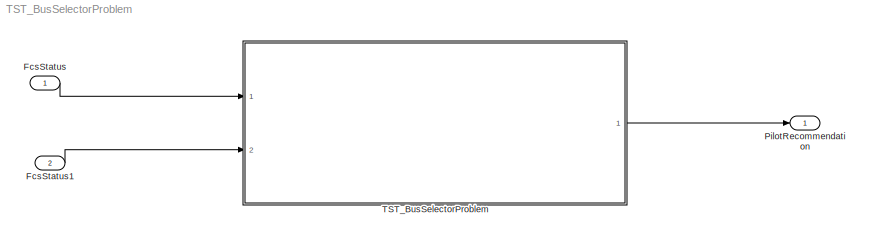
MODEL TST_BusSelectorProblem
KIND model
BLOCK [Inport] FcsStatus
  IconDisplay = Port number
  OutDataTypeStr = Bus: FCS_FlightControlSystem_Status
  SID = 23
BLOCK [Inport] FcsStatus1
  IconDisplay = Port number
  OutDataTypeStr = Bus: FCS_FlightControlSystem_Status
  Port = 2
  SID = 62
BLOCK [Outport] PilotRecommendation
  IconDisplay = Port number
  OutDataTypeStr = uint32
  PortDimensions = 1
  SID = 25
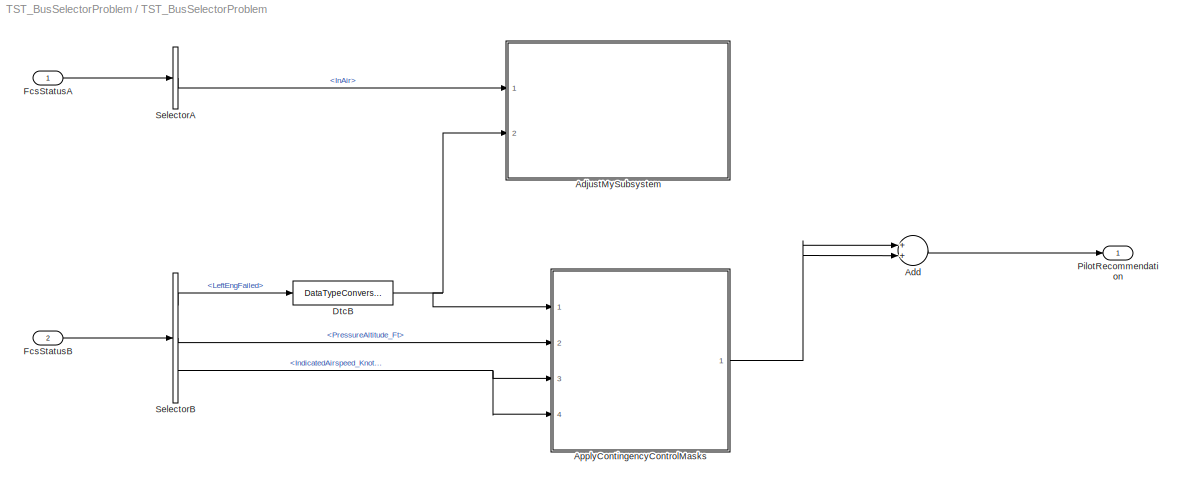
BLOCK [SubSystem] TST_BusSelectorProblem
  Ports = [2, 1]
  RequestExecContextInheritance = off
  SID = 2
  TreatAsAtomicUnit = on
BLOCK [Sum] TST_BusSelectorProblem/Add
  InputSameDT = off
  OutDataTypeStr = Inherit: Inherit via internal rule
  Ports = [2, 1]
  SID = 85
  SaturateOnIntegerOverflow = off
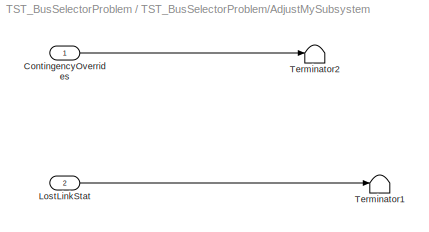
BLOCK [SubSystem] TST_BusSelectorProblem/AdjustMySubsystem
  Ports = [2]
  RequestExecContextInheritance = off
  SID = 36
  TreatAsAtomicUnit = on
BLOCK [Inport] TST_BusSelectorProblem/AdjustMySubsystem/ContingencyOverrides
  IconDisplay = Port number
  SID = 37
BLOCK [Inport] TST_BusSelectorProblem/AdjustMySubsystem/LostLinkStat
  IconDisplay = Port number
  Port = 2
  SID = 38
BLOCK [Terminator] TST_BusSelectorProblem/AdjustMySubsystem/Terminator1
  SID = 99
BLOCK [Terminator] TST_BusSelectorProblem/AdjustMySubsystem/Terminator2
  SID = 129
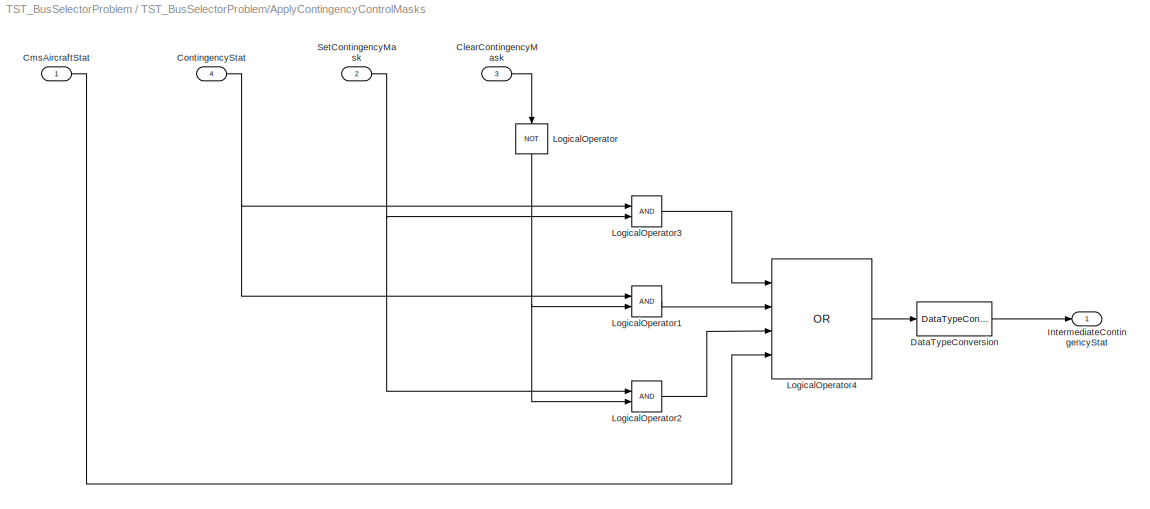
BLOCK [SubSystem] TST_BusSelectorProblem/ApplyContingencyControlMasks
  Ports = [4, 1]
  RequestExecContextInheritance = off
  SID = 49
  TreatAsAtomicUnit = on
BLOCK [Inport] TST_BusSelectorProblem/ApplyContingencyControlMasks/ClearContingencyMask
  IconDisplay = Port number
  Port = 3
  SID = 52
BLOCK [Inport] TST_BusSelectorProblem/ApplyContingencyControlMasks/CmsAircraftStat
  IconDisplay = Port number
  SID = 50
BLOCK [Inport] TST_BusSelectorProblem/ApplyContingencyControlMasks/ContingencyStat
  IconDisplay = Port number
  Port = 4
  SID = 53
BLOCK [DataTypeConversion] TST_BusSelectorProblem/ApplyContingencyControlMasks/DataTypeConversion
  OutDataTypeStr = uint32
  RndMeth = Floor
  SID = 54
  SaturateOnIntegerOverflow = off
BLOCK [Outport] TST_BusSelectorProblem/ApplyContingencyControlMasks/IntermediateContingencyStat
  IconDisplay = Port number
  SID = 60
BLOCK [Logic] TST_BusSelectorProblem/ApplyContingencyControlMasks/LogicalOperator
  AllPortsSameDT = off
  Operator = NOT
  OutDataTypeStr = boolean
  Ports = [1, 1]
  SID = 55
BLOCK [Logic] TST_BusSelectorProblem/ApplyContingencyControlMasks/LogicalOperator1
  AllPortsSameDT = off
  OutDataTypeStr = boolean
  Ports = [2, 1]
  SID = 56
BLOCK [Logic] TST_BusSelectorProblem/ApplyContingencyControlMasks/LogicalOperator2
  AllPortsSameDT = off
  OutDataTypeStr = boolean
  Ports = [2, 1]
  SID = 57
BLOCK [Logic] TST_BusSelectorProblem/ApplyContingencyControlMasks/LogicalOperator3
  AllPortsSameDT = off
  OutDataTypeStr = boolean
  Ports = [2, 1]
  SID = 58
BLOCK [Logic] TST_BusSelectorProblem/ApplyContingencyControlMasks/LogicalOperator4
  AllPortsSameDT = off
  Inputs = 4
  Operator = OR
  OutDataTypeStr = boolean
  Ports = [4, 1]
  SID = 59
BLOCK [Inport] TST_BusSelectorProblem/ApplyContingencyControlMasks/SetContingencyMask
  IconDisplay = Port number
  Port = 2
  SID = 51
BLOCK [DataTypeConversion] TST_BusSelectorProblem/DtcB
  OutDataTypeStr = uint32
  RndMeth = Floor
  SID = 61
  SaturateOnIntegerOverflow = off
BLOCK [Inport] TST_BusSelectorProblem/FcsStatusA
  IconDisplay = Port number
  OutDataTypeStr = Bus: FCS_FlightControlSystem_Status
  SID = 8
BLOCK [Inport] TST_BusSelectorProblem/FcsStatusB
  IconDisplay = Port number
  OutDataTypeStr = Bus: FCS_FlightControlSystem_Status
  Port = 2
  SID = 32
BLOCK [Outport] TST_BusSelectorProblem/PilotRecommendation
  IconDisplay = Port number
  OutDataTypeStr = uint32
  PortDimensions = 1
  SID = 20
BLOCK [BusSelector] TST_BusSelectorProblem/SelectorA
  OutputAsBus = off
  OutputSignals = InAir
  Ports = [1, 1]
  SID = 10
BLOCK [BusSelector] TST_BusSelectorProblem/SelectorB
  OutputAsBus = off
  OutputSignals = LeftEngFailed,PressureAltitude_Ft,IndicatedAirspeed_Knots
  Ports = [1, 3]
  SID = 33
LINE FcsStatus1:1 -> TST_BusSelectorProblem:2
LINE FcsStatus:1 -> TST_BusSelectorProblem:1
LINE TST_BusSelectorProblem/Add:1 -> TST_BusSelectorProblem/PilotRecommendation:1
LINE TST_BusSelectorProblem/AdjustMySubsystem/ContingencyOverrides:1 -> TST_BusSelectorProblem/AdjustMySubsystem/Terminator2:1
LINE TST_BusSelectorProblem/AdjustMySubsystem/LostLinkStat:1 -> TST_BusSelectorProblem/AdjustMySubsystem/Terminator1:1
LINE TST_BusSelectorProblem/ApplyContingencyControlMasks/ClearContingencyMask:1 -> TST_BusSelectorProblem/ApplyContingencyControlMasks/LogicalOperator:1
LINE TST_BusSelectorProblem/ApplyContingencyControlMasks/CmsAircraftStat:1 -> TST_BusSelectorProblem/ApplyContingencyControlMasks/LogicalOperator4:4
NET TST_BusSelectorProblem/ApplyContingencyControlMasks/ContingencyStat:1 -> TST_BusSelectorProblem/ApplyContingencyControlMasks/LogicalOperator1:1, TST_BusSelectorProblem/ApplyContingencyControlMasks/LogicalOperator3:1
LINE TST_BusSelectorProblem/ApplyContingencyControlMasks/DataTypeConversion:1 -> TST_BusSelectorProblem/ApplyContingencyControlMasks/IntermediateContingencyStat:1
LINE TST_BusSelectorProblem/ApplyContingencyControlMasks/LogicalOperator1:1 -> TST_BusSelectorProblem/ApplyContingencyControlMasks/LogicalOperator4:2
LINE TST_BusSelectorProblem/ApplyContingencyControlMasks/LogicalOperator2:1 -> TST_BusSelectorProblem/ApplyContingencyControlMasks/LogicalOperator4:3
LINE TST_BusSelectorProblem/ApplyContingencyControlMasks/LogicalOperator3:1 -> TST_BusSelectorProblem/ApplyContingencyControlMasks/LogicalOperator4:1
LINE TST_BusSelectorProblem/ApplyContingencyControlMasks/LogicalOperator4:1 -> TST_BusSelectorProblem/ApplyContingencyControlMasks/DataTypeConversion:1
NET TST_BusSelectorProblem/ApplyContingencyControlMasks/LogicalOperator:1 -> TST_BusSelectorProblem/ApplyContingencyControlMasks/LogicalOperator1:2, TST_BusSelectorProblem/ApplyContingencyControlMasks/LogicalOperator2:2
NET TST_BusSelectorProblem/ApplyContingencyControlMasks/SetContingencyMask:1 -> TST_BusSelectorProblem/ApplyContingencyControlMasks/LogicalOperator2:1, TST_BusSelectorProblem/ApplyContingencyControlMasks/LogicalOperator3:2
NET TST_BusSelectorProblem/ApplyContingencyControlMasks:1 -> TST_BusSelectorProblem/Add:1, TST_BusSelectorProblem/Add:2
NET TST_BusSelectorProblem/DtcB:1 -> TST_BusSelectorProblem/AdjustMySubsystem:2, TST_BusSelectorProblem/ApplyContingencyControlMasks:1
LINE TST_BusSelectorProblem/FcsStatusA:1 -> TST_BusSelectorProblem/SelectorA:1
LINE TST_BusSelectorProblem/FcsStatusB:1 -> TST_BusSelectorProblem/SelectorB:1
LINE TST_BusSelectorProblem/SelectorA:1 -> TST_BusSelectorProblem/AdjustMySubsystem:1
LINE TST_BusSelectorProblem/SelectorB:1 -> TST_BusSelectorProblem/DtcB:1
LINE TST_BusSelectorProblem/SelectorB:2 -> TST_BusSelectorProblem/ApplyContingencyControlMasks:2
NET TST_BusSelectorProblem/SelectorB:3 -> TST_BusSelectorProblem/ApplyContingencyControlMasks:3, TST_BusSelectorProblem/ApplyContingencyControlMasks:4
LINE TST_BusSelectorProblem:1 -> PilotRecommendation:1
note: NET lines group one-source signal fan-out (src -> all destinations, sorted); 1:1 wires keep LINE
